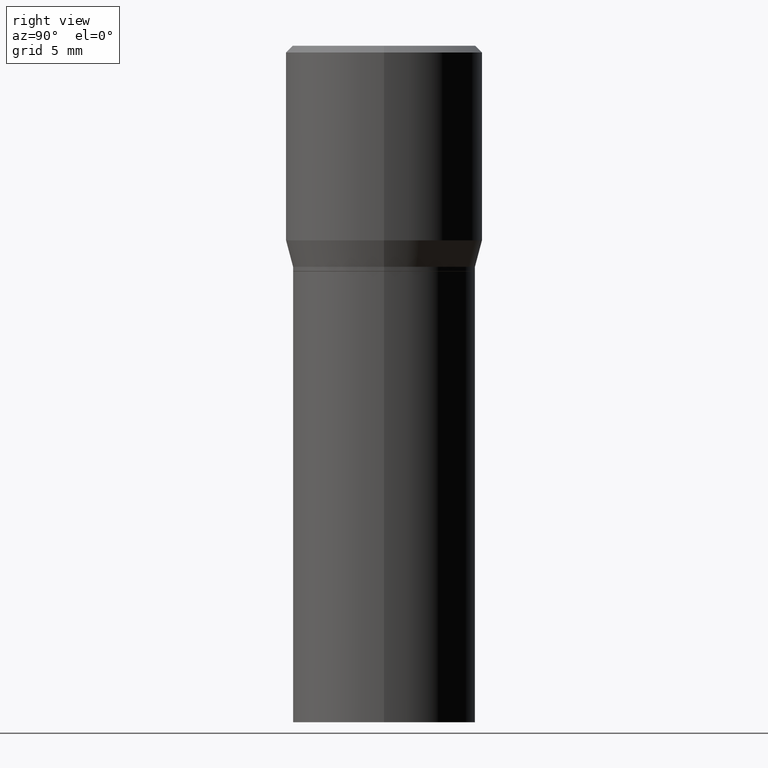
[diagram: clean part render]
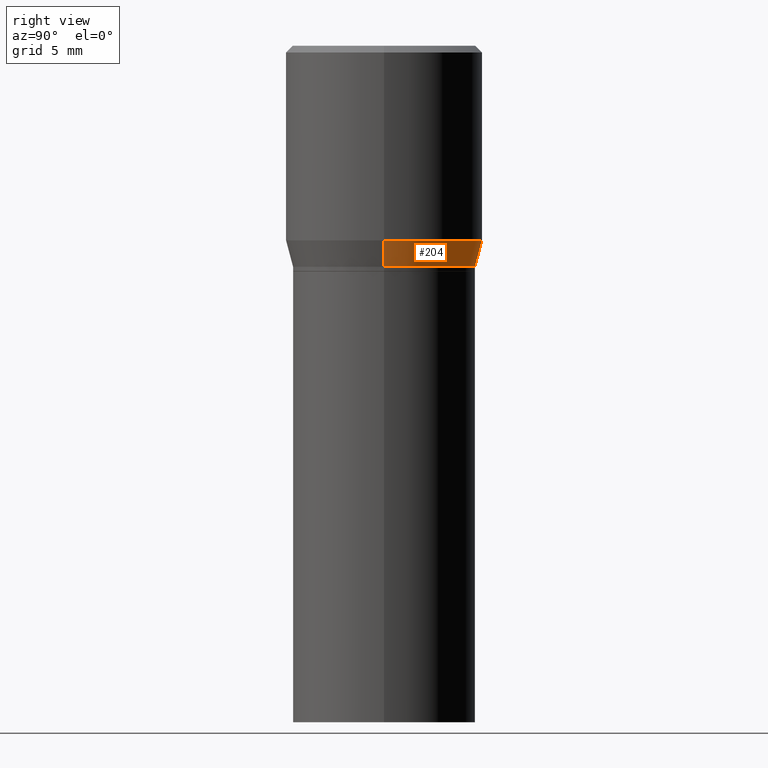
[diagram: same view with one face highlighted and labeled with its STEP entity id]
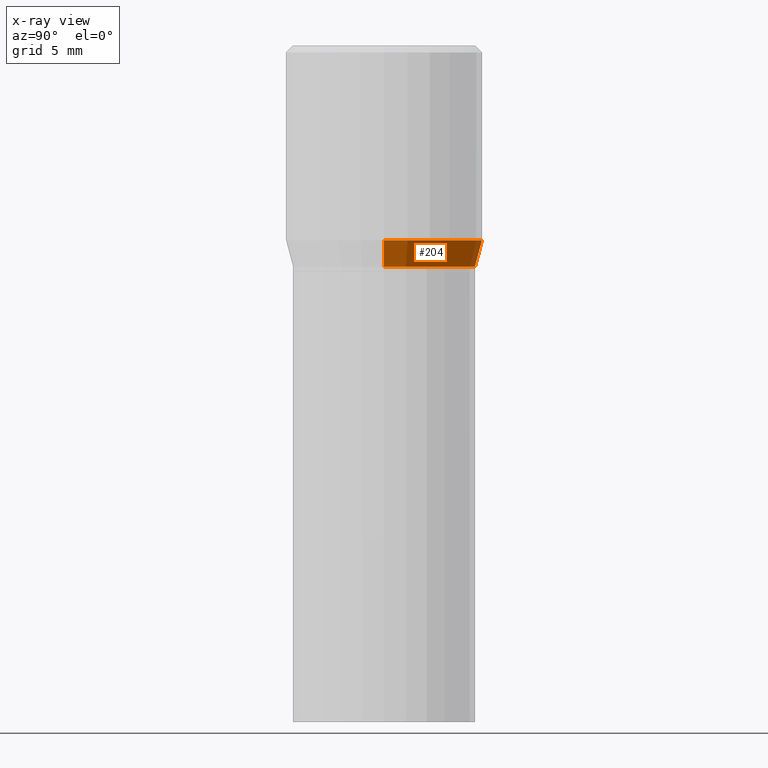
[diagram: x-ray of the same camera — body ghosted, the highlighted face saturated]
A machine part, right view. The second image highlights one B-rep face of the part: STEP entity #204.
The next image is the same camera in x-ray: the body ghosted, the highlighted face saturated — about 0% of this face is hidden behind the body in this view.
In plain terms, the highlighted conical surface has half-angle 15 deg.
Its self-contained STEP definition (entity closure, byte-faithful):
#2 = DIRECTION ( 'NONE',  ( 1.000000000000000000, -6.982962677686265133E-15, 0.000000000000000000 ) ) ;
#4 = CARTESIAN_POINT ( 'NONE',  ( -0.2031000000000000583, -1.101508221355132898E-16, -0.4900000000000001021 ) ) ;
#5 = VECTOR ( 'NONE', #422, 39.37007874015748854 ) ;
#28 = CARTESIAN_POINT ( 'NONE',  ( -0.2187500000000000000, 4.741191543335144142E-17, -0.4315934048615475138 ) ) ;
#31 = VECTOR ( 'NONE', #37, 39.37007874015748854 ) ;
#35 = DIRECTION ( 'NONE',  ( -2.445468806185136597E-29, 3.491481338843145583E-15, 1.000000000000000000 ) ) ;
#37 = DIRECTION ( 'NONE',  ( 0.2588190451025211836, 1.565188264969622559E-15, 0.9659258262890679791 ) ) ;
#44 = CARTESIAN_POINT ( 'NONE',  ( 0.2031000000000000583, -3.129065575871222509E-15, -0.4900000000000001021 ) ) ;
#54 = VERTEX_POINT ( 'NONE', #4 ) ;
#60 = VERTEX_POINT ( 'NONE', #44 ) ;
#69 = DIRECTION ( 'NONE',  ( 1.000000000000000000, -6.982962677686265922E-15, 0.000000000000000000 ) ) ;
#76 = EDGE_CURVE ( 'NONE', #54, #223, #451, .T. ) ;
#77 = ORIENTED_EDGE ( 'NONE', *, *, #303, .F. ) ;
#137 = CARTESIAN_POINT ( 'NONE',  ( 0.2187500000000000000, -3.034423404785738170E-15, -0.4315934048615475138 ) ) ;
#138 = CIRCLE ( 'NONE', #207, 0.2187500000000000000 ) ;
#140 = DIRECTION ( 'NONE',  ( -2.445468806185136597E-29, 3.491481338843145583E-15, 1.000000000000000000 ) ) ;
#147 = ORIENTED_EDGE ( 'NONE', *, *, #76, .T. ) ;
#151 = VERTEX_POINT ( 'NONE', #137 ) ;
#154 = CONICAL_SURFACE ( 'NONE', #399, 0.2031000000000000583, 0.2617993877991499074 ) ;
#204 = ADVANCED_FACE ( 'NONE', ( #292 ), #154, .T. ) ;
#207 = AXIS2_PLACEMENT_3D ( 'NONE', #272, #35, #2 ) ;
#222 = CARTESIAN_POINT ( 'NONE',  ( 0.2031000000000000583, -3.129065575871222509E-15, -0.4900000000000001021 ) ) ;
#223 = VERTEX_POINT ( 'NONE', #28 ) ;
#242 = CARTESIAN_POINT ( 'NONE',  ( 1.198279715030717173E-29, -1.710825856033141537E-15, -0.4900000000000001021 ) ) ;
#272 = CARTESIAN_POINT ( 'NONE',  ( 1.055448208544146876E-29, -1.506900319041867721E-15, -0.4315934048615475138 ) ) ;
#273 = ORIENTED_EDGE ( 'NONE', *, *, #322, .F. ) ;
#292 = FACE_OUTER_BOUND ( 'NONE', #346, .T. ) ;
#301 = ORIENTED_EDGE ( 'NONE', *, *, #396, .T. ) ;
#303 = EDGE_CURVE ( 'NONE', #60, #151, #463, .T. ) ;
#322 = EDGE_CURVE ( 'NONE', #151, #223, #138, .T. ) ;
#325 = AXIS2_PLACEMENT_3D ( 'NONE', #242, #347, #343 ) ;
#343 = DIRECTION ( 'NONE',  ( 1.000000000000000000, -6.982962677686265922E-15, 0.000000000000000000 ) ) ;
#346 = EDGE_LOOP ( 'NONE', ( #301, #147, #273, #77 ) ) ;
#347 = DIRECTION ( 'NONE',  ( -2.445468806185136597E-29, 3.491481338843145583E-15, 1.000000000000000000 ) ) ;
#349 = CARTESIAN_POINT ( 'NONE',  ( -0.2031000000000000583, -2.677135597043777931E-16, -0.4900000000000001021 ) ) ;
#396 = EDGE_CURVE ( 'NONE', #60, #54, #430, .T. ) ;
#399 = AXIS2_PLACEMENT_3D ( 'NONE', #465, #140, #69 ) ;
#422 = DIRECTION ( 'NONE',  ( -0.2588190451025211836, 5.211531920934547886E-15, 0.9659258262890679791 ) ) ;
#430 = CIRCLE ( 'NONE', #325, 0.2031000000000000583 ) ;
#451 = LINE ( 'NONE', #349, #5 ) ;
#463 = LINE ( 'NONE', #222, #31 ) ;
#465 = CARTESIAN_POINT ( 'NONE',  ( 1.198279715030717173E-29, -1.710825856033141537E-15, -0.4900000000000001021 ) ) ;